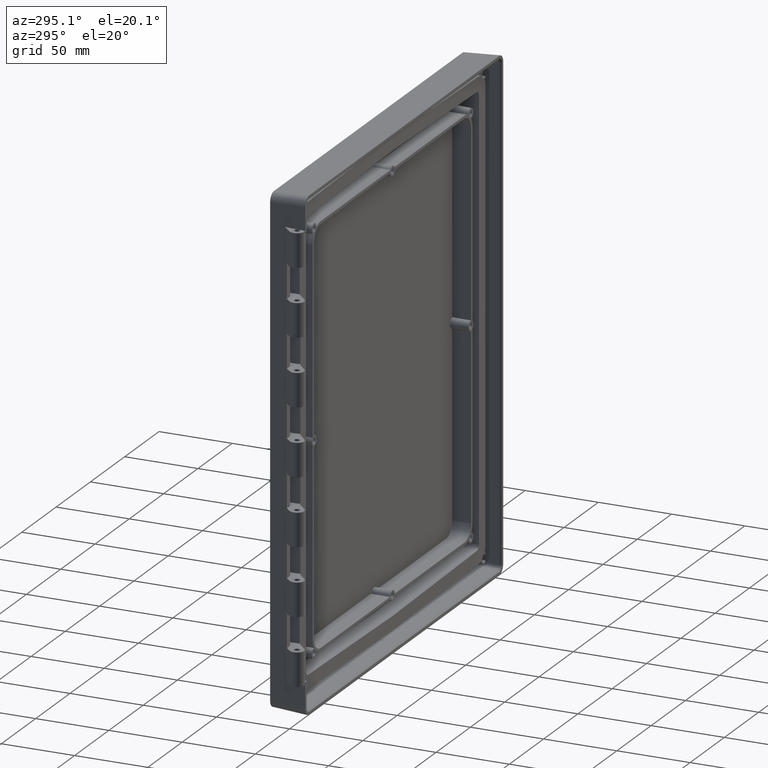
[diagram: clean part render]
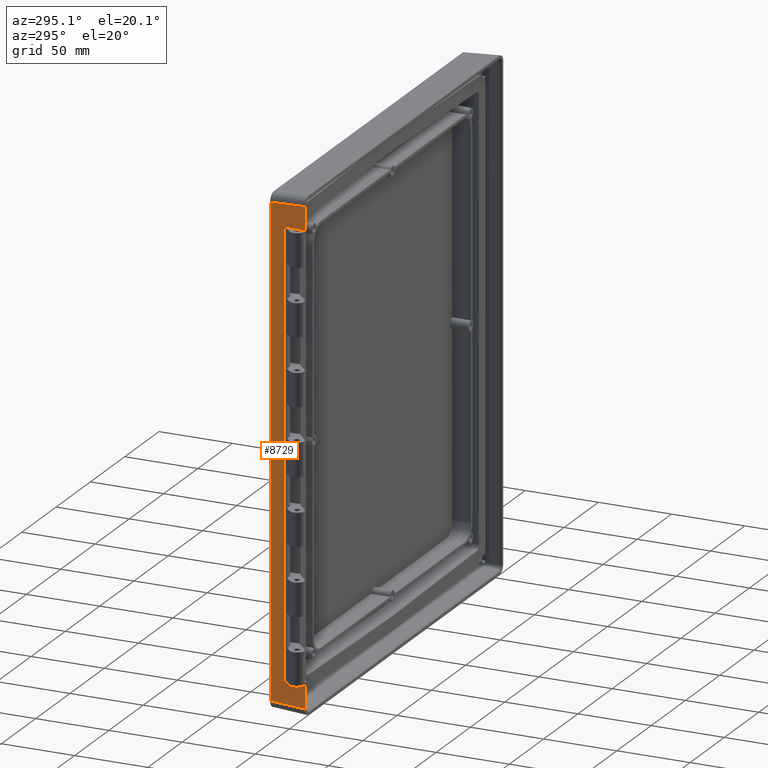
[diagram: same view with one face highlighted and labeled with its STEP entity id]
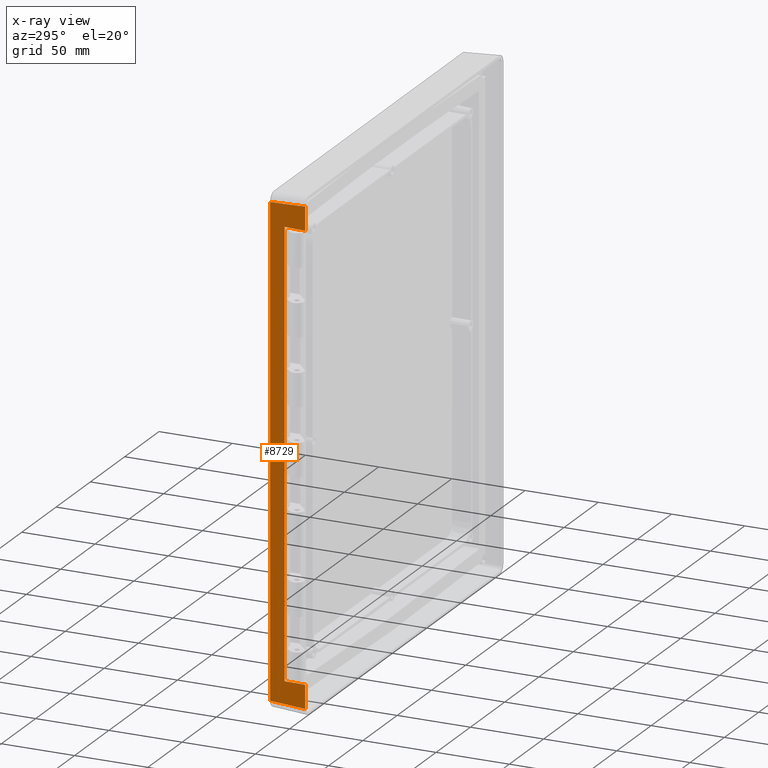
[diagram: x-ray of the same camera — body ghosted, the highlighted face saturated]
A machine part, auxiliary view. The second image highlights one B-rep face of the part: STEP entity #8729.
The next image is the same camera in x-ray: the body ghosted, the highlighted face saturated — about 0% of this face is hidden behind the body in this view.
In plain terms, the highlighted planar face has unit normal (-0.9986, 0.0523, 0).
Its self-contained STEP definition (entity closure, byte-faithful):
#9=DIRECTION('',(0.E0,0.E0,1.E0));
#10=VECTOR('',#9,2.992263881754E2);
#11=CARTESIAN_POINT('',(-1.435101415814E2,6.484884940690E0,-1.496131940877E2));
#12=LINE('',#11,#10);
#471=CARTESIAN_POINT('',(-1.440133644462E2,-3.099999999567E0,
-1.494613494991E2));
#472=CARTESIAN_POINT('',(-1.438459311613E2,9.481739481423E-2,
-1.495171152441E2));
#473=CARTESIAN_POINT('',(-1.436775748662E2,3.290067546308E0,-1.495574283426E2));
#474=CARTESIAN_POINT('',(-1.435101415814E2,6.484884940690E0,-1.496131940877E2));
#476=DIRECTION('',(0.E0,0.E0,1.E0));
#477=VECTOR('',#476,1.592679979311E1);
#478=CARTESIAN_POINT('',(-1.442692622343E2,-8.E0,-1.654267997931E2));
#479=LINE('',#478,#477);
#480=DIRECTION('',(5.226442768872E-2,9.972646886342E-1,5.226442768872E-2));
#481=VECTOR('',#480,2.466747321986E1);
#482=CARTESIAN_POINT('',(-1.442692622343E2,-8.E0,-1.654267997931E2));
#483=LINE('',#482,#481);
#484=DIRECTION('',(0.E0,0.E0,1.E0));
#485=VECTOR('',#484,3.282751368455E2);
#486=CARTESIAN_POINT('',(-1.429800308639E2,1.66E1,-1.641375684228E2));
#487=LINE('',#486,#485);
#488=DIRECTION('',(-5.226442768871E-2,-9.972646886342E-1,5.226442768871E-2));
#489=VECTOR('',#488,2.466747321986E1);
#490=CARTESIAN_POINT('',(-1.429800308639E2,1.66E1,1.641375684228E2));
#491=LINE('',#490,#489);
#492=DIRECTION('',(0.E0,0.E0,1.E0));
#493=VECTOR('',#492,1.592679979311E1);
#494=CARTESIAN_POINT('',(-1.442692622343E2,-8.E0,1.495E2));
#495=LINE('',#494,#493);
#504=DIRECTION('',(-5.215134915669E-2,-9.986081271286E-1,-7.876878432209E-3));
#505=VECTOR('',#504,4.906829683554E0);
#506=CARTESIAN_POINT('',(-1.440133644462E2,-3.099999999567E0,
-1.494613494991E2));
#507=LINE('',#506,#505);
#3357=CARTESIAN_POINT('',(-1.429800308639E2,1.66E1,-1.641375684228E2));
#3524=DIRECTION('',(5.242294235928E-2,9.984996824631E-1,1.581831961912E-2));
#3525=VECTOR('',#3524,9.599286918763E0);
#3526=CARTESIAN_POINT('',(-1.440133644462E2,-3.099999999567E0,
1.494613494991E2));
#3527=LINE('',#3526,#3525);
#3532=DIRECTION('',(5.215134915668E-2,9.986081271286E-1,-7.876878432209E-3));
#3533=VECTOR('',#3532,4.906829683554E0);
#3534=CARTESIAN_POINT('',(-1.442692622343E2,-8.E0,1.495E2));
#3535=LINE('',#3534,#3533);
#6763=CARTESIAN_POINT('',(-1.429800308639E2,1.66E1,1.641375684228E2));
#6933=CARTESIAN_POINT('',(-1.435101415814E2,6.484884940690E0,
-1.496131940877E2));
#6935=VERTEX_POINT('',#6933);
#7095=CARTESIAN_POINT('',(-1.442692622343E2,-8.E0,1.495E2));
#7096=CARTESIAN_POINT('',(-1.440133644462E2,-3.099999999567E0,
1.494613494991E2));
#7097=VERTEX_POINT('',#7095);
#7098=VERTEX_POINT('',#7096);
#7099=CARTESIAN_POINT('',(-1.442692622343E2,-8.E0,1.654267997931E2));
#7100=VERTEX_POINT('',#7099);
#7101=CARTESIAN_POINT('',(-1.442692622343E2,-8.E0,-1.654267997931E2));
#7102=CARTESIAN_POINT('',(-1.442692622343E2,-8.E0,-1.495E2));
#7103=VERTEX_POINT('',#7101);
#7104=VERTEX_POINT('',#7102);
#7105=CARTESIAN_POINT('',(-1.440133644462E2,-3.099999999567E0,
-1.494613494991E2));
#7106=VERTEX_POINT('',#7105);
#7164=CARTESIAN_POINT('',(-1.435101415814E2,6.484884940690E0,1.496131940877E2));
#7166=VERTEX_POINT('',#7164);
#7173=VERTEX_POINT('',#6763);
#7174=VERTEX_POINT('',#3357);
#8704=CARTESIAN_POINT('',(-1.4385E2,0.E0,1.705E2));
#8705=DIRECTION('',(-9.986295347546E-1,5.233595624294E-2,0.E0));
#8706=DIRECTION('',(-5.233595624294E-2,-9.986295347546E-1,0.E0));
#8707=AXIS2_PLACEMENT_3D('',#8704,#8705,#8706);
#8708=PLANE('',#8707);
#8709=ORIENTED_EDGE('',*,*,#8693,.F.);
#8711=ORIENTED_EDGE('',*,*,#8710,.T.);
#8713=ORIENTED_EDGE('',*,*,#8712,.F.);
#8715=ORIENTED_EDGE('',*,*,#8714,.T.);
#8717=ORIENTED_EDGE('',*,*,#8716,.T.);
#8719=ORIENTED_EDGE('',*,*,#8718,.T.);
#8721=ORIENTED_EDGE('',*,*,#8720,.F.);
#8723=ORIENTED_EDGE('',*,*,#8722,.T.);
#8725=ORIENTED_EDGE('',*,*,#8724,.T.);
#8726=ORIENTED_EDGE('',*,*,#8395,.F.);
#8727=EDGE_LOOP('',(#8709,#8711,#8713,#8715,#8717,#8719,#8721,#8723,#8725,
#8726));
#8728=FACE_OUTER_BOUND('',#8727,.F.);
#8729=ADVANCED_FACE('',(#8728),#8708,.T.);
#475=B_SPLINE_CURVE_WITH_KNOTS('',3,(#471,#472,#473,#474),.UNSPECIFIED.,.F.,.F.,
(4,4),(0.E0,1.E0),.UNSPECIFIED.);
#8395=EDGE_CURVE('',#6935,#7166,#12,.T.);
#8693=EDGE_CURVE('',#7106,#6935,#475,.T.);
#8710=EDGE_CURVE('',#7106,#7104,#507,.T.);
#8712=EDGE_CURVE('',#7103,#7104,#479,.T.);
#8714=EDGE_CURVE('',#7103,#7174,#483,.T.);
#8716=EDGE_CURVE('',#7174,#7173,#487,.T.);
#8718=EDGE_CURVE('',#7173,#7100,#491,.T.);
#8720=EDGE_CURVE('',#7097,#7100,#495,.T.);
#8722=EDGE_CURVE('',#7097,#7098,#3535,.T.);
#8724=EDGE_CURVE('',#7098,#7166,#3527,.T.);